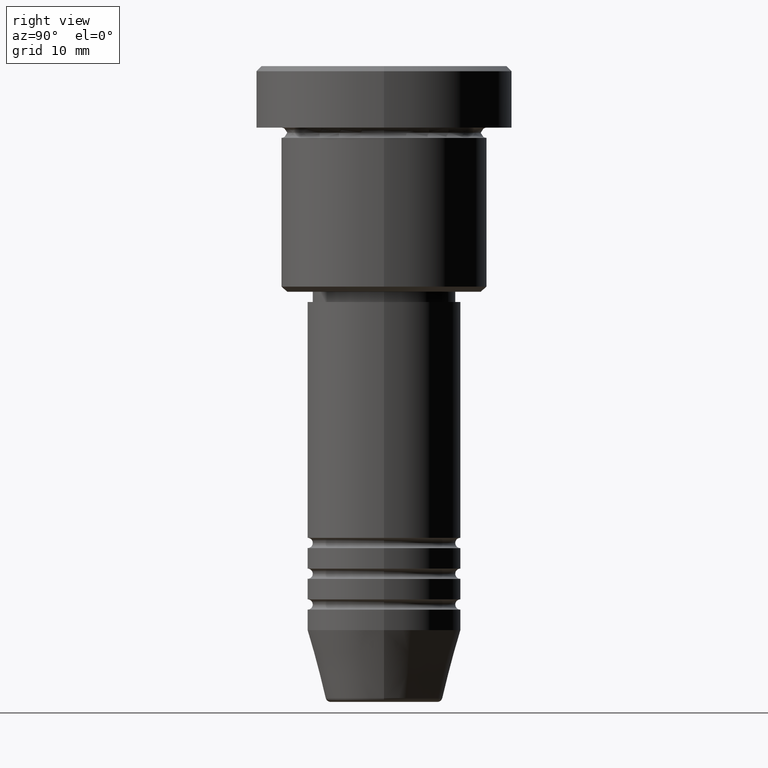
[diagram: clean part render]
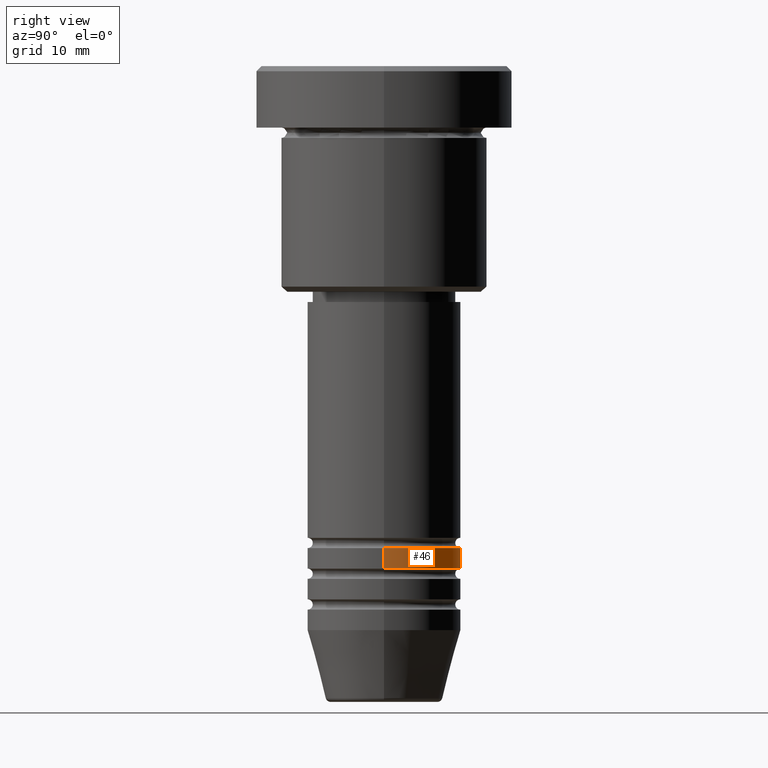
[diagram: same view with one face highlighted and labeled with its STEP entity id]
A machine part, right view. The second image highlights one B-rep face of the part: STEP entity #46.
In plain terms, the highlighted cylindrical surface (partial cylindrical patch) has radius 7.5 mm, axis along (-0, -0, 1).
Its self-contained STEP definition (entity closure, byte-faithful):
#29 = DIRECTION ( 'NONE',  ( -0.000000000000000000, -0.000000000000000000, 1.000000000000000000 ) ) ;
#46 = ADVANCED_FACE ( 'NONE', ( #251 ), #66, .T. ) ;
#63 = CARTESIAN_POINT ( 'NONE',  ( 0.000000000000000000, 0.000000000000000000, -48.99999999999997868 ) ) ;
#66 = CYLINDRICAL_SURFACE ( 'NONE', #1113, 7.500000000000000000 ) ;
#93 = VERTEX_POINT ( 'NONE', #347 ) ;
#146 = CIRCLE ( 'NONE', #704, 7.500000000000000000 ) ;
#149 = VERTEX_POINT ( 'NONE', #806 ) ;
#167 = DIRECTION ( 'NONE',  ( 1.000000000000000000, 0.000000000000000000, 0.000000000000000000 ) ) ;
#210 = LINE ( 'NONE', #381, #611 ) ;
#251 = FACE_OUTER_BOUND ( 'NONE', #1123, .T. ) ;
#337 = EDGE_CURVE ( 'NONE', #1134, #149, #1039, .T. ) ;
#343 = DIRECTION ( 'NONE',  ( 1.000000000000000000, 0.000000000000000000, 0.000000000000000000 ) ) ;
#347 = CARTESIAN_POINT ( 'NONE',  ( 7.500000000000000000, 0.000000000000000000, -46.99999999999998579 ) ) ;
#355 = CARTESIAN_POINT ( 'NONE',  ( -7.500000000000000000, 9.184850993605147944E-16, -48.99999999999997868 ) ) ;
#356 = DIRECTION ( 'NONE',  ( -0.000000000000000000, -0.000000000000000000, 1.000000000000000000 ) ) ;
#377 = EDGE_CURVE ( 'NONE', #402, #93, #210, .T. ) ;
#381 = CARTESIAN_POINT ( 'NONE',  ( 7.500000000000000000, 0.000000000000000000, 0.000000000000000000 ) ) ;
#396 = ORIENTED_EDGE ( 'NONE', *, *, #662, .F. ) ;
#402 = VERTEX_POINT ( 'NONE', #477 ) ;
#477 = CARTESIAN_POINT ( 'NONE',  ( 7.500000000000000000, 0.000000000000000000, -48.99999999999997868 ) ) ;
#492 = CARTESIAN_POINT ( 'NONE',  ( -7.500000000000000000, 9.184850993605147944E-16, 0.000000000000000000 ) ) ;
#611 = VECTOR ( 'NONE', #1120, 1000.000000000000000 ) ;
#662 = EDGE_CURVE ( 'NONE', #93, #149, #146, .T. ) ;
#673 = ORIENTED_EDGE ( 'NONE', *, *, #377, .F. ) ;
#685 = ORIENTED_EDGE ( 'NONE', *, *, #690, .T. ) ;
#690 = EDGE_CURVE ( 'NONE', #402, #1134, #709, .T. ) ;
#704 = AXIS2_PLACEMENT_3D ( 'NONE', #829, #1007, #995 ) ;
#709 = CIRCLE ( 'NONE', #1035, 7.500000000000000000 ) ;
#803 = CARTESIAN_POINT ( 'NONE',  ( 0.000000000000000000, 0.000000000000000000, 0.000000000000000000 ) ) ;
#806 = CARTESIAN_POINT ( 'NONE',  ( -7.500000000000000000, 9.184850993605147944E-16, -46.99999999999998579 ) ) ;
#829 = CARTESIAN_POINT ( 'NONE',  ( 0.000000000000000000, 0.000000000000000000, -46.99999999999998579 ) ) ;
#992 = DIRECTION ( 'NONE',  ( -0.000000000000000000, -0.000000000000000000, 1.000000000000000000 ) ) ;
#995 = DIRECTION ( 'NONE',  ( 1.000000000000000000, 0.000000000000000000, 0.000000000000000000 ) ) ;
#1003 = VECTOR ( 'NONE', #29, 1000.000000000000000 ) ;
#1007 = DIRECTION ( 'NONE',  ( -0.000000000000000000, -0.000000000000000000, 1.000000000000000000 ) ) ;
#1035 = AXIS2_PLACEMENT_3D ( 'NONE', #63, #356, #343 ) ;
#1039 = LINE ( 'NONE', #492, #1003 ) ;
#1040 = ORIENTED_EDGE ( 'NONE', *, *, #337, .T. ) ;
#1113 = AXIS2_PLACEMENT_3D ( 'NONE', #803, #992, #167 ) ;
#1120 = DIRECTION ( 'NONE',  ( -0.000000000000000000, -0.000000000000000000, 1.000000000000000000 ) ) ;
#1123 = EDGE_LOOP ( 'NONE', ( #685, #1040, #396, #673 ) ) ;
#1134 = VERTEX_POINT ( 'NONE', #355 ) ;